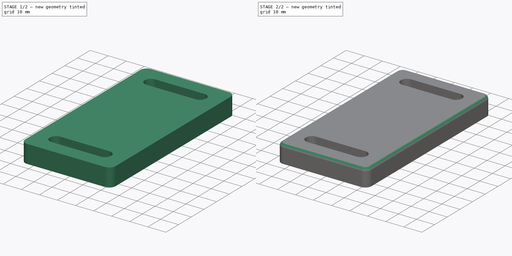
[diagram: build sequence overview — one tinted view per stage of 2, left to right]
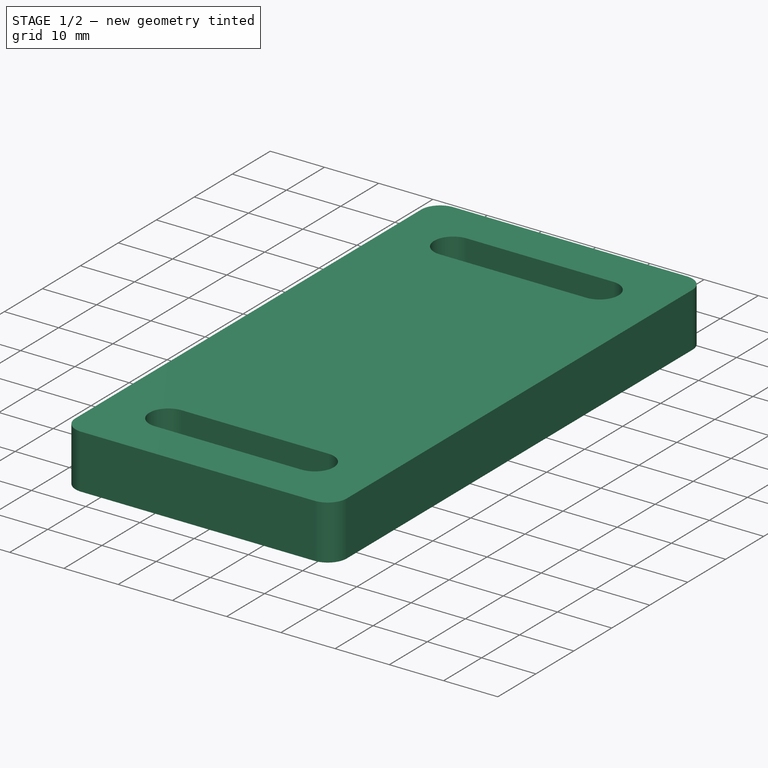
[diagram: stage 1 of 2 — iso view after this stage's code; geometry added in this stage tinted green]
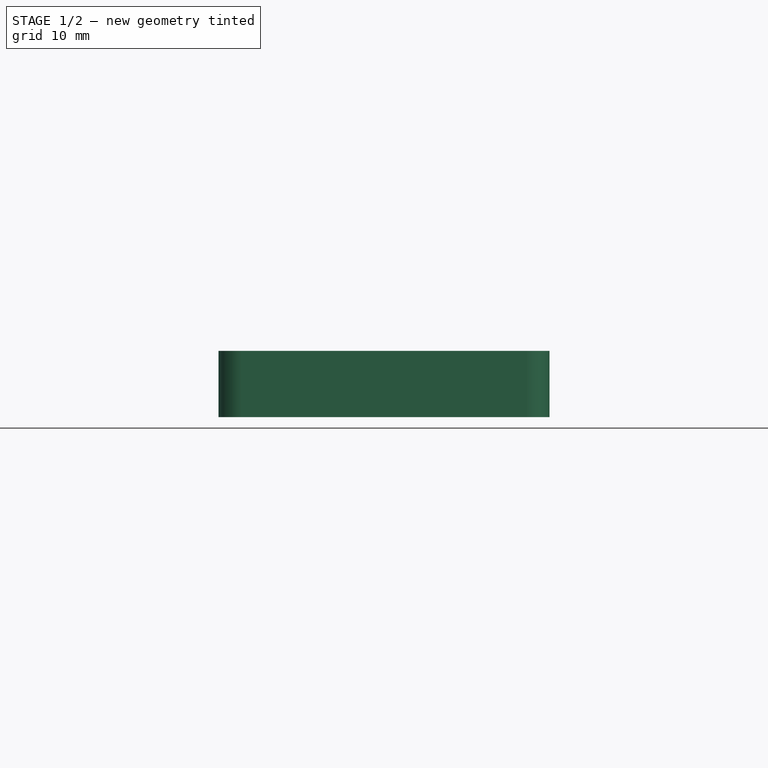
[diagram: stage 1 of 2 — front view after this stage's code; geometry added in this stage tinted green]
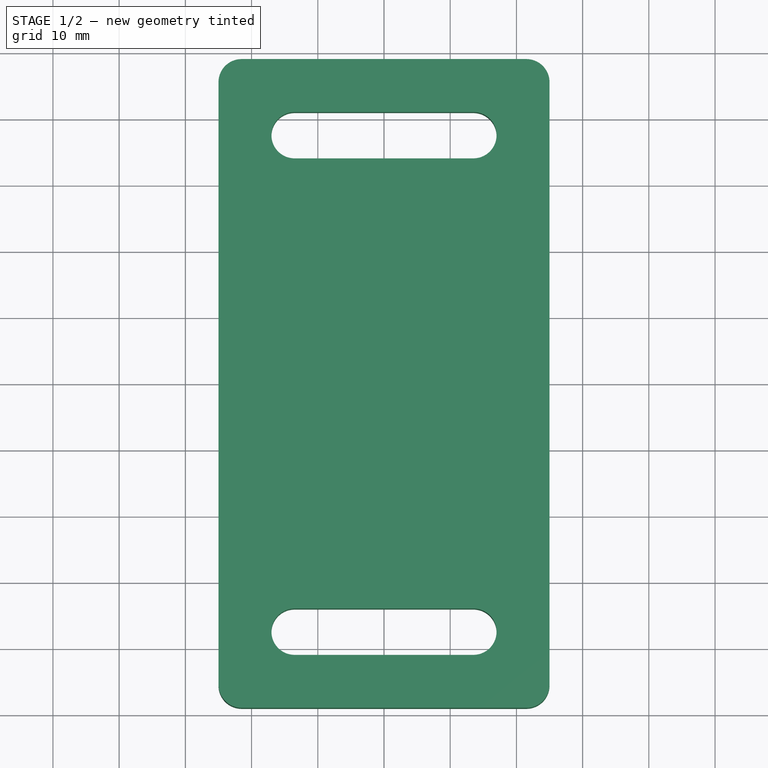
[diagram: stage 1 of 2 — top view after this stage's code; geometry added in this stage tinted green]
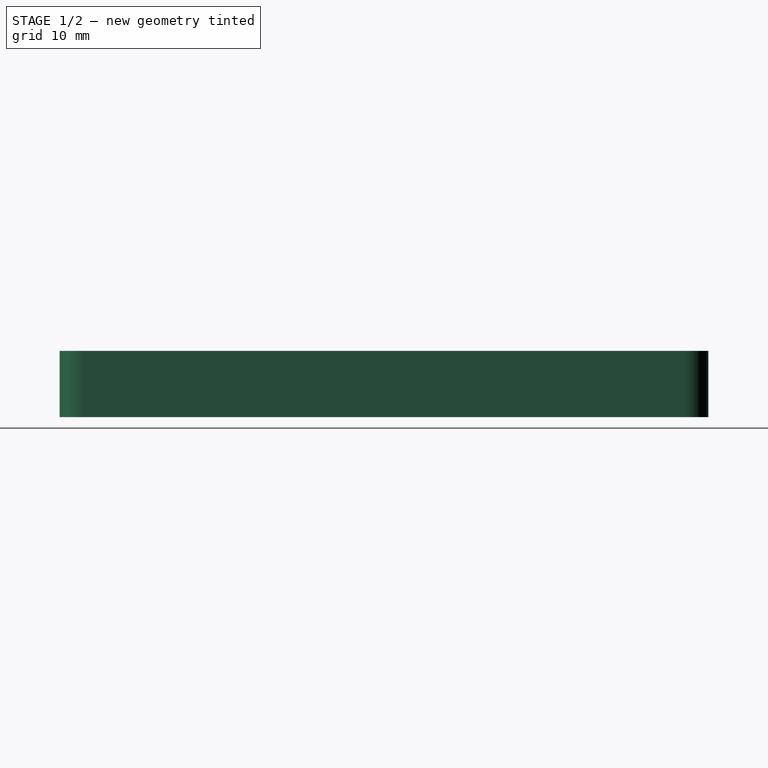
[diagram: stage 1 of 2 — right view after this stage's code; geometry added in this stage tinted green]
FCSTD DOCUMENT  (FreeCAD 0.20R29410 (Git))
Label: scannermount
License: All rights reserved
LicenseURL: http://en.wikipedia.org/wiki/All_rights_reserved
objects: Sketcher::SketchObject×1, PartDesign::Pad×1, PartDesign::Fillet×1, PartDesign::Body×1
note: 6 computed .brp shape members not serialized (recipe doc carries the construction recipe); baked Part::Feature solids carry a one-line shape summary decoded from their .brp

FEATURE [Sketcher::SketchObject] Sketch
  FullyConstrained = true
  MapMode = 5
  Support = -> [XY_Plane]
  sketch-geometry (29):
    g0: LineSegment StartX=-18.085 StartY=22.5 StartZ=0 EndX=18.085 EndY=22.5 EndZ=0
    g1: LineSegment StartX=18.085 StartY=22.5 StartZ=0 EndX=18.085 EndY=-22.5 EndZ=0
    g2: LineSegment StartX=18.085 StartY=-22.5 StartZ=0 EndX=-18.085 EndY=-22.5 EndZ=0
    g3: LineSegment StartX=-18.085 StartY=-22.5 StartZ=0 EndX=-18.085 EndY=22.5 EndZ=0
    g4: Circle CenterX=-13.585 CenterY=18 CenterZ=0 NormalX=0 NormalY=0 NormalZ=1 AngleXU=0 Radius=2.25
    g5: Circle CenterX=14.085 CenterY=18.5 CenterZ=0 NormalX=0 NormalY=0 NormalZ=1 AngleXU=0 Radius=1.75
    g6: Circle CenterX=-14.085 CenterY=-18.5 CenterZ=0 NormalX=0 NormalY=0 NormalZ=1 AngleXU=0 Radius=1.75
    g7: Circle CenterX=14.085 CenterY=-18 CenterZ=0 NormalX=0 NormalY=0 NormalZ=1 AngleXU=0 Radius=2.25
    g8: LineSegment StartX=-21.5 StartY=49 StartZ=0 EndX=21.5 EndY=49 EndZ=0
    g9: LineSegment StartX=25 StartY=45.5 StartZ=0 EndX=25 EndY=-45.5 EndZ=0
    g10: LineSegment StartX=21.5 StartY=-49 StartZ=0 EndX=-21.5 EndY=-49 EndZ=0
    g11: LineSegment StartX=-25 StartY=-45.5 StartZ=0 EndX=-25 EndY=45.5 EndZ=0
    g12: ArcOfCircle CenterX=-13.5 CenterY=37.5 CenterZ=0 NormalX=0 NormalY=0 NormalZ=1 AngleXU=0 Radius=3.5 StartAngle=1.5708 EndAngle=4.71239
    g13: ArcOfCircle CenterX=13.5 CenterY=37.5 CenterZ=0 NormalX=0 NormalY=0 NormalZ=1 AngleXU=0 Radius=3.5 StartAngle=4.71239 EndAngle=7.85398
    g14: LineSegment StartX=-13.5 StartY=34 StartZ=0 EndX=13.5 EndY=34 EndZ=0
    g15: LineSegment StartX=13.5 StartY=41 StartZ=0 EndX=-13.5 EndY=41 EndZ=0
    g16: ArcOfCircle CenterX=-13.5 CenterY=-37.5 CenterZ=0 NormalX=0 NormalY=0 NormalZ=1 AngleXU=0 Radius=3.5 StartAngle=1.5708 EndAngle=4.71239
    g17: ArcOfCircle CenterX=13.5 CenterY=-37.5 CenterZ=0 NormalX=0 NormalY=0 NormalZ=1 AngleXU=0 Radius=3.5 StartAngle=4.71239 EndAngle=7.85398
    g18: LineSegment StartX=-13.5 StartY=-41 StartZ=0 EndX=13.5 EndY=-41 EndZ=0
    g19: LineSegment StartX=13.5 StartY=-34 StartZ=0 EndX=-13.5 EndY=-34 EndZ=0
    g20: LineSegment StartX=0 StartY=77.54 StartZ=0 EndX=0 EndY=-77.54 EndZ=0
    g21: ArcOfCircle CenterX=-21.5 CenterY=45.5 CenterZ=0 NormalX=0 NormalY=0 NormalZ=1 AngleXU=0 Radius=3.5 StartAngle=1.5708 EndAngle=3.14159
    g22: GeomPoint X=-25 Y=49 Z=0
    g23: ArcOfCircle CenterX=21.5 CenterY=45.5 CenterZ=0 NormalX=0 NormalY=0 NormalZ=1 AngleXU=0 Radius=3.5 StartAngle=-9e-16 EndAngle=1.5708
    g24: GeomPoint X=25 Y=49 Z=0
    g25: ArcOfCircle CenterX=21.5 CenterY=-45.5 CenterZ=0 NormalX=0 NormalY=0 NormalZ=1 AngleXU=0 Radius=3.5 StartAngle=4.71239 EndAngle=6.28319
    g26: GeomPoint X=25 Y=-49 Z=0
    g27: ArcOfCircle CenterX=-21.5 CenterY=-45.5 CenterZ=0 NormalX=0 NormalY=0 NormalZ=1 AngleXU=0 Radius=3.5 StartAngle=3.14159 EndAngle=4.71239
    g28: GeomPoint X=-25 Y=-49 Z=0
  constraints (73):
    c: Coincident(g0,g1)
    c: Coincident(g1,g2)
    c: Coincident(g2,g3)
    c: Coincident(g3,g0)
    c: Horizontal(g0)
    c: Horizontal(g2)
    c: Vertical(g1)
    c: Vertical(g3)
    c: DistanceX(g0,g0) = 36.17
    c: DistanceY(g1,g1) = 45
    c: Diameter(g4) = 4.5
    c: Distance(g4,g3) = 4.5
    c: Distance(g4,g0) = 4.5
    c: Diameter(g5) = 3.5
    c: Diameter(g6) = 3.5
    c: Diameter(g7) = 4.5
    c: Distance(g6,g3) = 4
    c: Distance(g7,g1) = 4
    c: Distance(g7,g2) = 4.5
    c: Distance(g6,g2) = 4
    c: Distance(g5,g1) = 4
    c: Distance(g5,g0) = 4
    c: Symmetric(g0,g1,g-1)
    c: Horizontal(g8)
    c: Horizontal(g10)
    c: Vertical(g9)
    c: Vertical(g11)
    c: Symmetric(g22,g26,g-1)
    c: DistanceX(g22,g24) = 50
    c: Tangent(g12,g14) = -1.5708
    c: Tangent(g14,g13) = -1.5708
    c: Tangent(g13,g15) = -1.5708
    c: Tangent(g15,g12) = -1.5708
    c: Equal(g12,g13)
    c: Horizontal(g14)
    c: Tangent(g16,g18) = -1.5708
    c: Tangent(g18,g17) = -1.5708
    c: Tangent(g17,g19) = -1.5708
    c: Tangent(g19,g16) = -1.5708
    c: Equal(g16,g17)
    c: Horizontal(g18)
    c: Radius(g12) = 3.5
    c: Vertical(g20)
    c: Symmetric(g20,g20,g-1)
    c: Distance(g12,g11) = 11.5
    c: Distance(g13,g9) = 11.5
    c: Distance(g13,g8) = 11.5
    c: Distance(g17,g9) = 11.5
    c: Distance(g16,g11) = 11.5
    c: Distance(g16,g10) = 11.5
    c: Radius(g17) = 3.5
    c: DistanceY(g20,g20) = 155.08
    c: DistanceY(g16,g12) = 75
    c: PointOnObject(g22,g11)
    c: PointOnObject(g22,g8)
    c: Tangent(g11,g21) = 1.5708
    c: Tangent(g8,g21) = 1.5708
    c: PointOnObject(g24,g8)
    c: PointOnObject(g24,g9)
    c: Tangent(g8,g23) = 1.5708
    c: Tangent(g9,g23) = 1.5708
    c: PointOnObject(g26,g9)
    c: PointOnObject(g26,g10)
    c: Tangent(g9,g25) = 1.5708
    c: Tangent(g10,g25) = 1.5708
    c: PointOnObject(g28,g10)
    c: PointOnObject(g28,g11)
    c: Tangent(g10,g27) = 1.5708
    c: Tangent(g11,g27) = 1.5708
    c: Radius(g21) = 3.5
    c: Radius(g23) = 3.5
    c: Radius(g27) = 3.5
    c: Radius(g25) = 3.5
FEATURE [PartDesign::Pad] Pad
  Direction = (0,0,1)
  Length = 10
  Length2 = 10
  Profile = -> Sketch
  ReferenceAxis = -> Sketch [N_Axis]
  Refine = true
  Type = 0
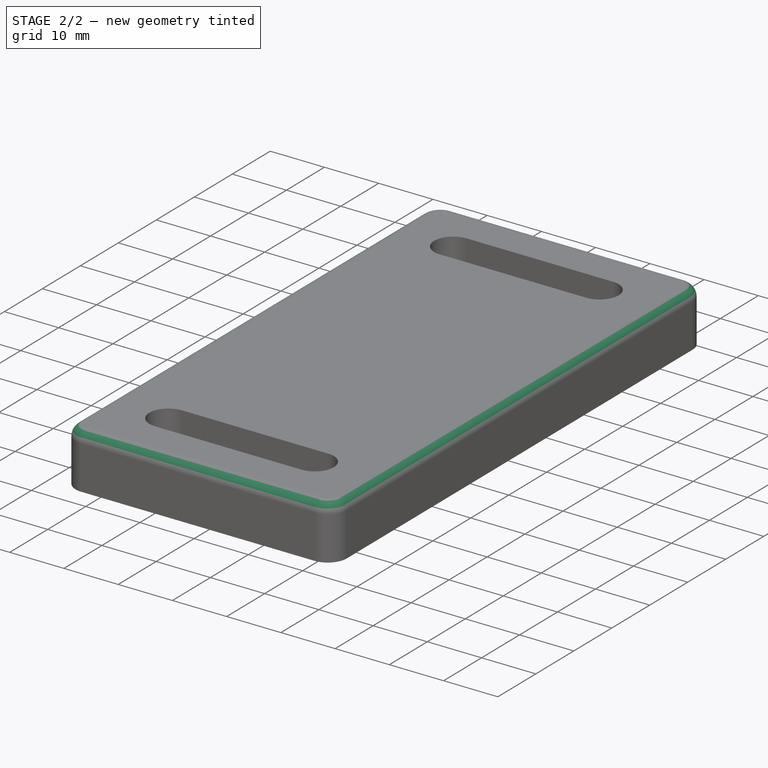
[diagram: stage 2 of 2 — iso view after this stage's code; geometry added in this stage tinted green]
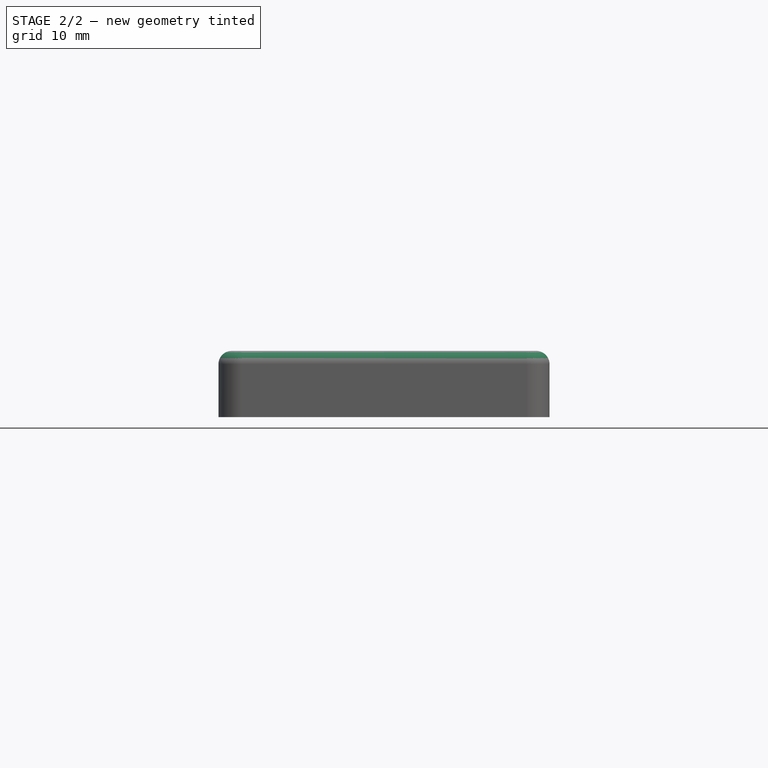
[diagram: stage 2 of 2 — front view after this stage's code; geometry added in this stage tinted green]
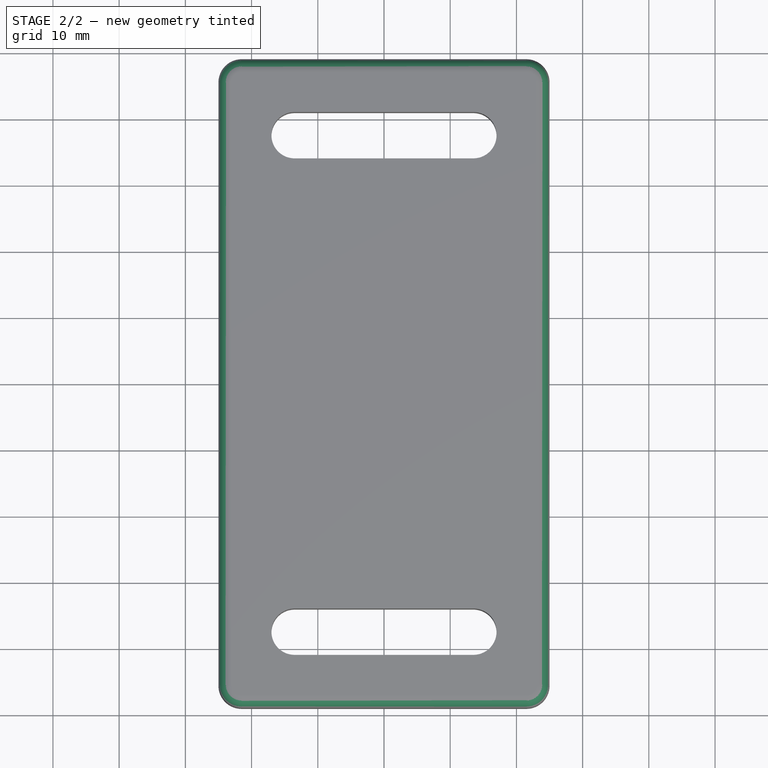
[diagram: stage 2 of 2 — top view after this stage's code; geometry added in this stage tinted green]
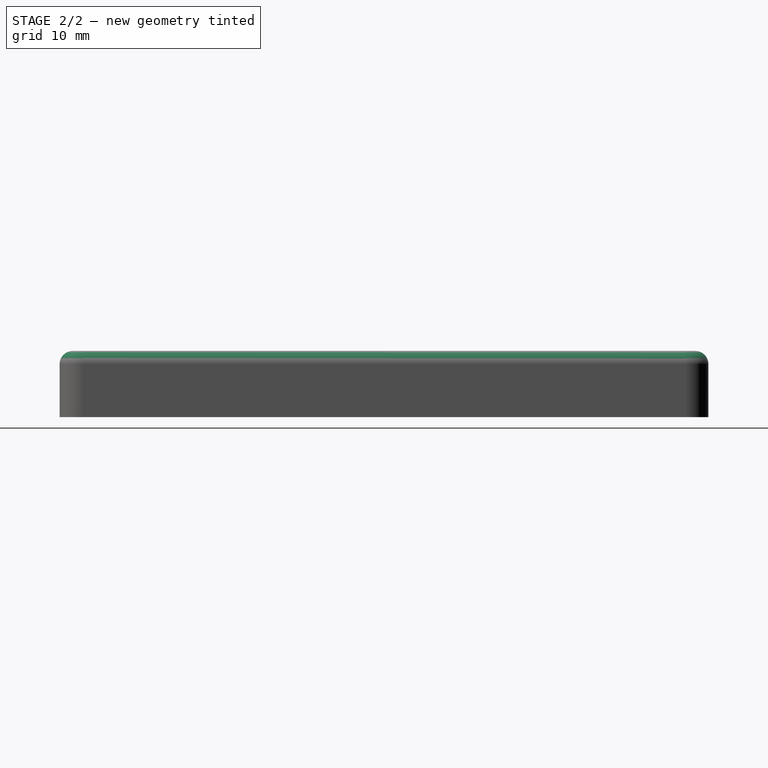
[diagram: stage 2 of 2 — right view after this stage's code; geometry added in this stage tinted green]
FEATURE [PartDesign::Fillet] Fillet
  Base = -> Pad [Edge4]
  BaseFeature = -> Pad
  Radius = 2
  Refine = true
  SupportTransform = false
  UseAllEdges = false
FEATURE [PartDesign::Body] Body
  Group = -> [Sketch,Pad,Fillet]
  Origin = -> Origin
  Tip = -> Fillet
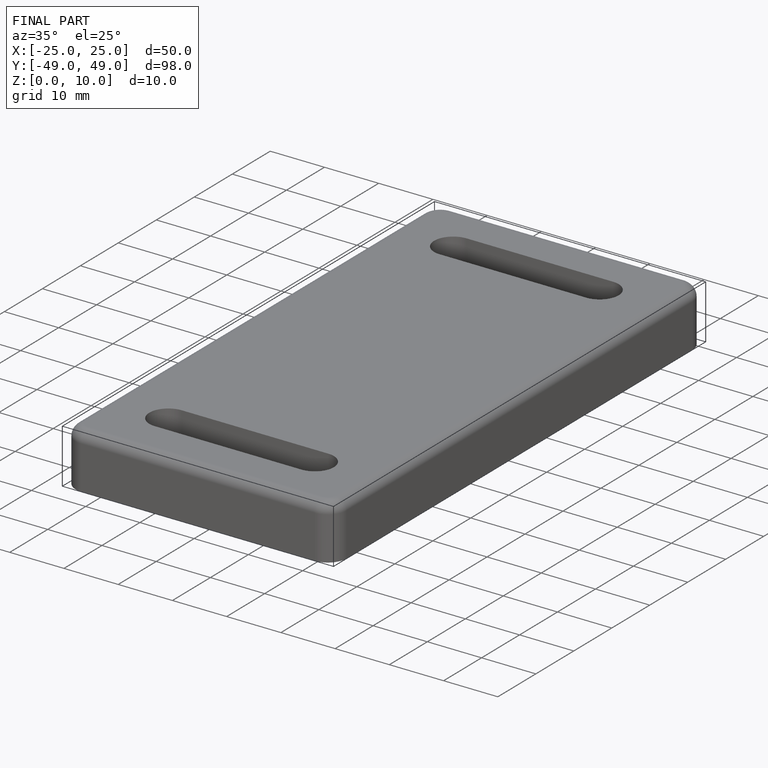
[diagram: finished part — iso view with bounding-box wireframe]
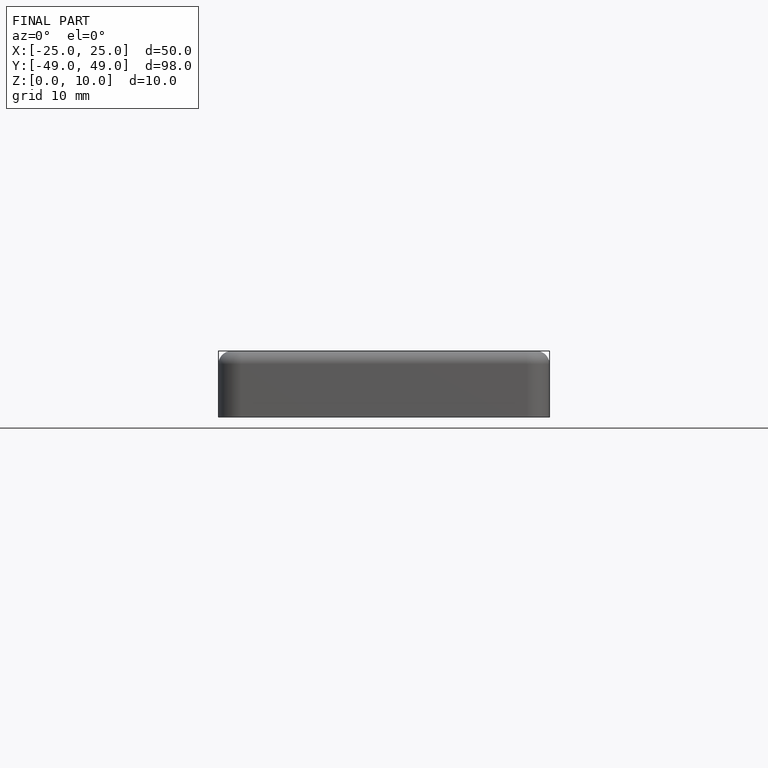
[diagram: finished part — front view with bounding-box wireframe]
